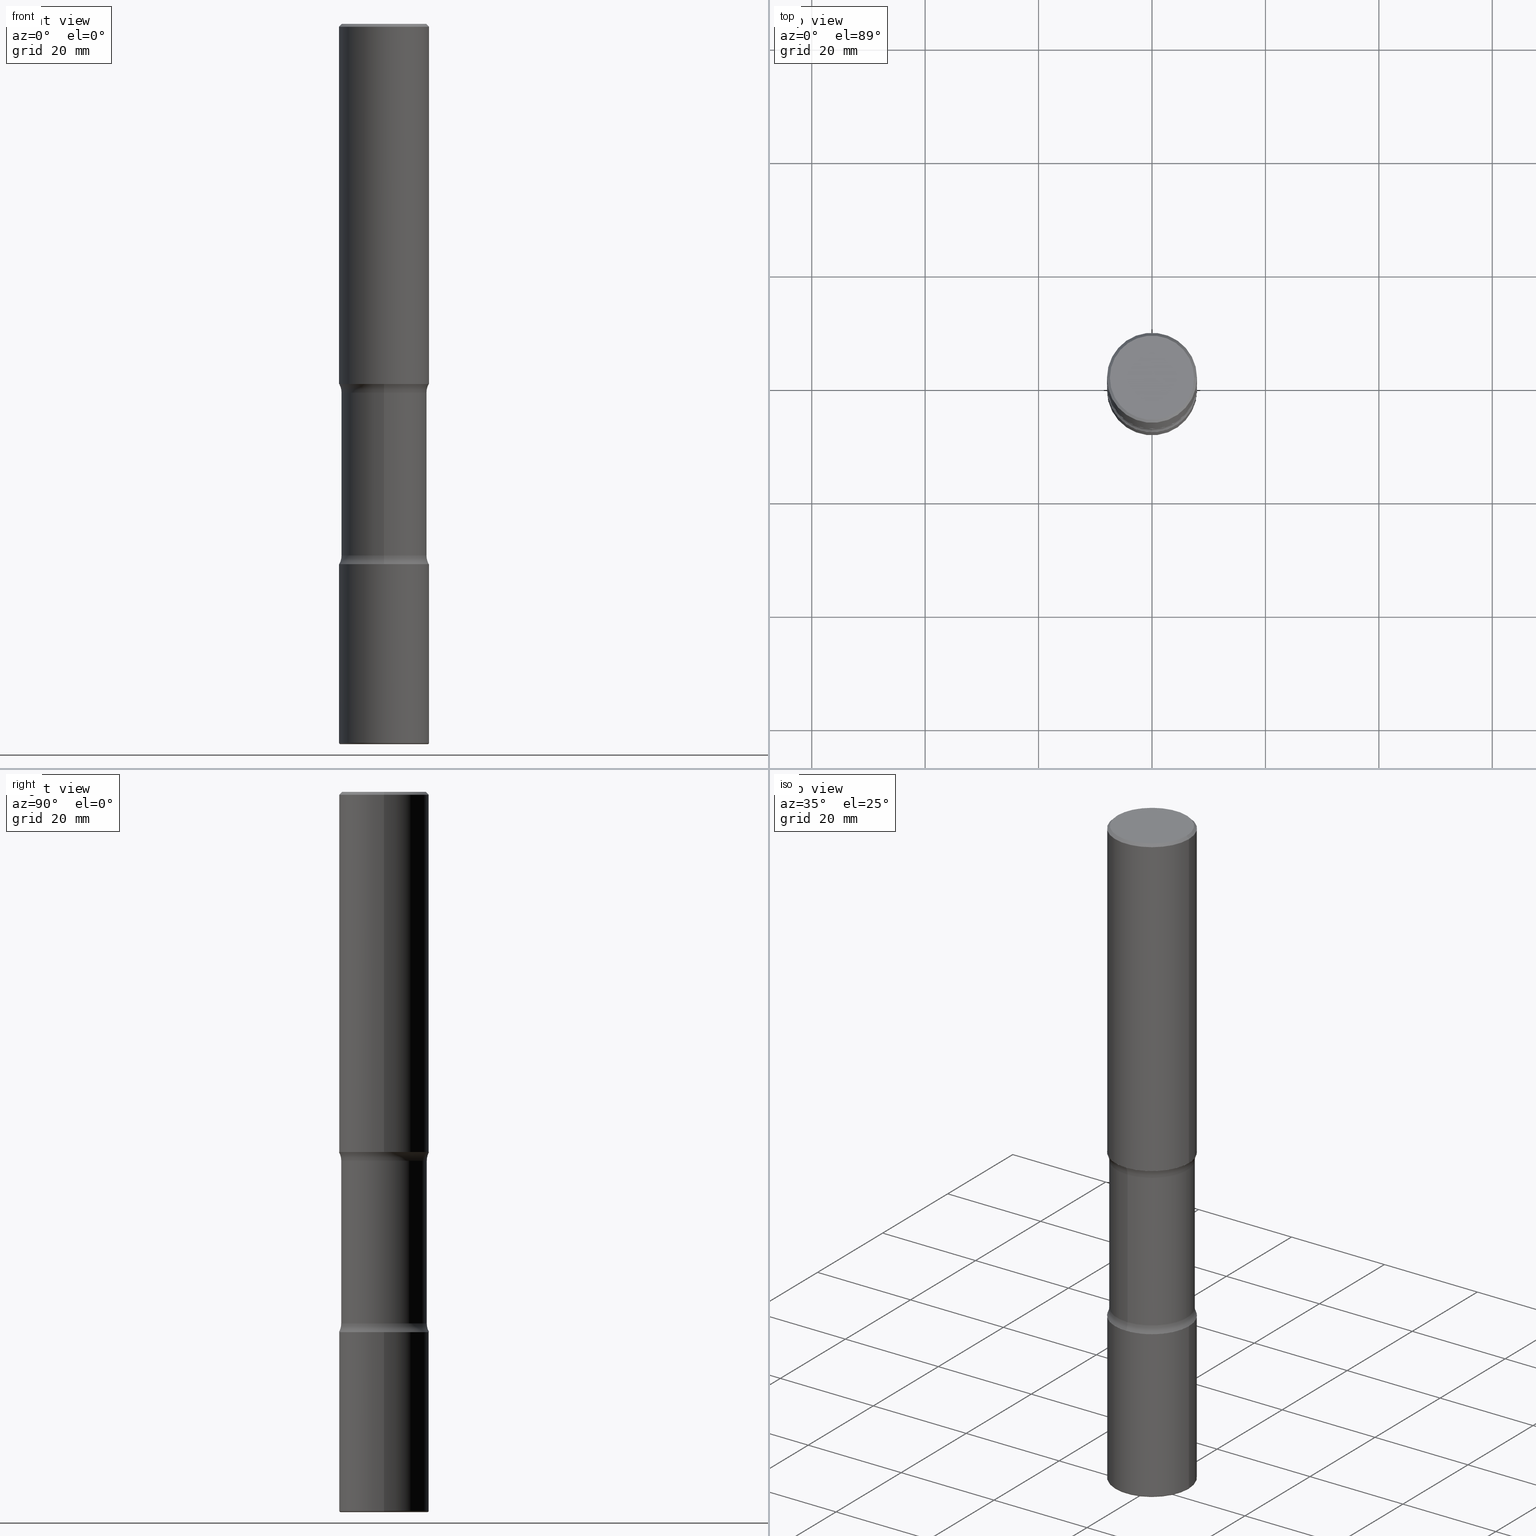
[diagram: canonical four-view strip — front | top / right | iso, engineering-drawing reading convention]
A machine part, canonical four-view strip (front | top / right | iso — engineering-drawing reading convention). The complete STEP part file that produces these views, byte-faithful:
ISO-10303-21;
HEADER;
FILE_DESCRIPTION (( 'STEP AP203' ),
    '1' );
FILE_NAME ('37996.STEP',
    '2024-03-02T02:13:46',
    ( '' ),
    ( '' ),
    'SwSTEP 2.0',
    'SolidWorks 2023',
    '' );
FILE_SCHEMA (( 'CONFIG_CONTROL_DESIGN' ));
ENDSEC;

DATA;
#1 = DIRECTION ( 'NONE',  ( 6.982962677686265922E-15, 1.000000000000000000, -3.181520472620407774E-15 ) ) ;
#2 = ORIENTED_EDGE ( 'NONE', *, *, #529, .F. ) ;
#3 = DIRECTION ( 'NONE',  ( -1.000000000000000000, 6.982962677686265922E-15, -4.876176775795935793E-29 ) ) ;
#4 = ORIENTED_EDGE ( 'NONE', *, *, #486, .T. ) ;
#5 = DIRECTION ( 'NONE',  ( -2.661913322222805309E-29, 3.181520472620407379E-15, 1.000000000000000000 ) ) ;
#6 = APPROVAL ( #298, 'UNSPECIFIED' ) ;
#7 = DIRECTION ( 'NONE',  ( -2.445468806185136597E-29, 3.491481338843145583E-15, 1.000000000000000000 ) ) ;
#8 = AXIS2_PLACEMENT_3D ( 'NONE', #119, #545, #290 ) ;
#9 = AXIS2_PLACEMENT_3D ( 'NONE', #146, #496, #93 ) ;
#10 = CALENDAR_DATE ( 2024, 1, 3 ) ;
#11 = FACE_OUTER_BOUND ( 'NONE', #196, .T. ) ;
#12 = CARTESIAN_POINT ( 'NONE',  ( -2.143905624303547210E-15, -0.3125000000000094369, -2.499999999999999112 ) ) ;
#13 = DIRECTION ( 'NONE',  ( -2.445468806185136597E-29, 3.491481338843145583E-15, 1.000000000000000000 ) ) ;
#14 = DATE_AND_TIME ( #537, #108 ) ;
#15 = FACE_OUTER_BOUND ( 'NONE', #247, .T. ) ;
#16 = CARTESIAN_POINT ( 'NONE',  ( -0.3125000000000000000, 2.220446049250313081E-15, -1.537167215704658232E-29 ) ) ;
#17 = ORIENTED_EDGE ( 'NONE', *, *, #73, .F. ) ;
#18 = PERSON_AND_ORGANIZATION ( #270, #492 ) ;
#19 = TOROIDAL_SURFACE ( 'NONE', #88, 0.3025000000000000466, 0.009999999999999995004 ) ;
#20 = CC_DESIGN_APPROVAL ( #6, ( #500 ) ) ;
#21 = DIRECTION ( 'NONE',  ( 2.438088387897960049E-29, -3.491481338843145188E-15, -1.000000000000000000 ) ) ;
#22 = ORIENTED_EDGE ( 'NONE', *, *, #37, .T. ) ;
#23 = AXIS2_PLACEMENT_3D ( 'NONE', #251, #100, #544 ) ;
#24 = CARTESIAN_POINT ( 'NONE',  ( 1.220288934286383144E-28, -1.742249188082729666E-14, -4.990000000000000213 ) ) ;
#25 = VECTOR ( 'NONE', #550, 39.37007874015748143 ) ;
#26 = LOCAL_TIME ( 21, 13, 46.00000000000000000, #316 ) ;
#27 = ADVANCED_FACE ( 'NONE', ( #117 ), #420, .T. ) ;
#28 = CARTESIAN_POINT ( 'NONE',  ( 5.843116370415757002E-29, -9.116154429886286908E-15, -2.500000000000000000 ) ) ;
#29 = ORIENTED_EDGE ( 'NONE', *, *, #433, .T. ) ;
#30 = CC_DESIGN_PERSON_AND_ORGANIZATION_ASSIGNMENT ( #147, #59, ( #225 ) ) ;
#31 = ORIENTED_EDGE ( 'NONE', *, *, #37, .F. ) ;
#32 = ORIENTED_EDGE ( 'NONE', *, *, #407, .F. ) ;
#33 = CARTESIAN_POINT ( 'NONE',  ( 2.073067044938172750E-15, 0.2968749999999910627, -2.560515364784492043 ) ) ;
#34 = EDGE_CURVE ( 'NONE', #430, #425, #387, .T. ) ;
#35 = DIRECTION ( 'NONE',  ( 6.982962677686265922E-15, 1.000000000000000000, -3.680805717779212911E-15 ) ) ;
#36 = ORIENTED_EDGE ( 'NONE', *, *, #518, .T. ) ;
#37 = EDGE_CURVE ( 'NONE', #506, #430, #533, .T. ) ;
#38 = CIRCLE ( 'NONE', #421, 0.1250000000000000000 ) ;
#39 = DIRECTION ( 'NONE',  ( -6.982962677686266711E-15, -1.000000000000000000, 0.000000000000000000 ) ) ;
#40 = ORIENTED_EDGE ( 'NONE', *, *, #317, .T. ) ;
#41 = DIRECTION ( 'NONE',  ( -2.445468806185136597E-29, 3.491481338843145583E-15, 1.000000000000000000 ) ) ;
#42 = DIRECTION ( 'NONE',  ( -2.445468806185136597E-29, 3.491481338843145583E-15, 1.000000000000000000 ) ) ;
#43 = CARTESIAN_POINT ( 'NONE',  ( 0.000000000000000000, 0.000000000000000000, 0.000000000000000000 ) ) ;
#44 = EDGE_LOOP ( 'NONE', ( #169, #507, #301, #113 ) ) ;
#45 = EDGE_CURVE ( 'NONE', #392, #204, #419, .T. ) ;
#46 = DIRECTION ( 'NONE',  ( 1.000000000000000000, -6.982962677686266711E-15, 4.876176775795936353E-29 ) ) ;
#47 = CIRCLE ( 'NONE', #364, 0.2968750000000003886 ) ;
#48 = VECTOR ( 'NONE', #226, 39.37007874015748143 ) ;
#49 = ORIENTED_EDGE ( 'NONE', *, *, #542, .F. ) ;
#50 = LOCAL_TIME ( 21, 13, 46.00000000000000000, #356 ) ;
#51 = CARTESIAN_POINT ( 'NONE',  ( 9.022519586318875859E-29, -1.288176675380346137E-14, -3.689484635215509289 ) ) ;
#52 = ORIENTED_EDGE ( 'NONE', *, *, #413, .F. ) ;
#53 = EDGE_CURVE ( 'NONE', #384, #477, #259, .T. ) ;
#54 = CARTESIAN_POINT ( 'NONE',  ( 4.890937612370273159E-31, -6.982962677686291609E-17, -0.02000000000000000042 ) ) ;
#55 = EDGE_CURVE ( 'NONE', #483, #244, #248, .T. ) ;
#56 = CARTESIAN_POINT ( 'NONE',  ( 0.3125000000000000555, -1.527523085743875734E-14, -3.750000000000000000 ) ) ;
#57 = CLOSED_SHELL ( 'NONE', ( #457, #329, #263, #125, #221, #449 ) ) ;
#58 = CARTESIAN_POINT ( 'NONE',  ( -0.3025000000000000466, -1.525503037505920444E-14, -5.000000000000000000 ) ) ;
#59 = PERSON_AND_ORGANIZATION_ROLE ( 'classification_officer' ) ;
#60 = DIRECTION ( 'NONE',  ( 2.661913322222804749E-29, -3.181520472620407774E-15, -1.000000000000000000 ) ) ;
#61 = LINE ( 'NONE', #16, #25 ) ;
#62 = MANIFOLD_SOLID_BREP ( 'Body-Move/Copy2[2]', #451 ) ;
#63 = AXIS2_PLACEMENT_3D ( 'NONE', #228, #410, #82 ) ;
#64 = DIRECTION ( 'NONE',  ( -2.445468806185136597E-29, 3.491481338843145583E-15, 1.000000000000000000 ) ) ;
#65 = CARTESIAN_POINT ( 'NONE',  ( -0.3124999999999999445, -1.520204583157698358E-14, -4.990000000000000213 ) ) ;
#66 = PRODUCT_RELATED_PRODUCT_CATEGORY ( 'detail', '', ( #536 ) ) ;
#67 = ORIENTED_EDGE ( 'NONE', *, *, #106, .F. ) ;
#68 = ORIENTED_EDGE ( 'NONE', *, *, #91, .T. ) ;
#69 = DIRECTION ( 'NONE',  ( -1.000000000000000000, 6.982962677686266711E-15, 0.000000000000000000 ) ) ;
#70 = AXIS2_PLACEMENT_3D ( 'NONE', #311, #222, #94 ) ;
#71 = FACE_OUTER_BOUND ( 'NONE', #371, .T. ) ;
#72 = DIRECTION ( 'NONE',  ( 1.000000000000000000, -6.982962677686268288E-15, 0.000000000000000000 ) ) ;
#73 = EDGE_CURVE ( 'NONE', #425, #430, #142, .T. ) ;
#74 = FACE_OUTER_BOUND ( 'NONE', #517, .T. ) ;
#75 = ORIENTED_EDGE ( 'NONE', *, *, #34, .T. ) ;
#76 = DIMENSIONAL_EXPONENTS ( 1.000000000000000000, 0.000000000000000000, 0.000000000000000000, 0.000000000000000000, 0.000000000000000000, 0.000000000000000000, 0.000000000000000000 ) ;
#77 = ORIENTED_EDGE ( 'NONE', *, *, #372, .F. ) ;
#78 = EDGE_LOOP ( 'NONE', ( #558, #206 ) ) ;
#79 = AXIS2_PLACEMENT_3D ( 'NONE', #51, #481, #209 ) ;
#80 = APPLICATION_CONTEXT ( 'configuration controlled 3d designs of mechanical parts and assemblies' ) ;
#81 = AXIS2_PLACEMENT_3D ( 'NONE', #546, #367, #332 ) ;
#82 = DIRECTION ( 'NONE',  ( 1.000000000000000000, -6.982962677686268288E-15, 0.000000000000000000 ) ) ;
#83 = ORIENTED_EDGE ( 'NONE', *, *, #287, .F. ) ;
#84 = DIRECTION ( 'NONE',  ( -6.982962677686265922E-15, -1.000000000000000000, 3.181520472620407379E-15 ) ) ;
#85 = EDGE_LOOP ( 'NONE', ( #131, #553 ) ) ;
#86 = EDGE_LOOP ( 'NONE', ( #77, #4, #337, #334 ) ) ;
#87 = DIRECTION ( 'NONE',  ( -2.445468806185136597E-29, 3.491481338843145583E-15, 1.000000000000000000 ) ) ;
#88 = AXIS2_PLACEMENT_3D ( 'NONE', #210, #7, #200 ) ;
#89 = VERTEX_POINT ( 'NONE', #543 ) ;
#90 = DIRECTION ( 'NONE',  ( -2.445468806185136877E-29, 3.491481338843145188E-15, 1.000000000000000000 ) ) ;
#91 = EDGE_CURVE ( 'NONE', #89, #506, #47, .T. ) ;
#92 = DIRECTION ( 'NONE',  ( -1.000000000000000000, 6.982962677686266711E-15, 0.000000000000000000 ) ) ;
#93 = DIRECTION ( 'NONE',  ( 6.860497997771529985E-15, 1.000000000000000000, 0.000000000000000000 ) ) ;
#94 = DIRECTION ( 'NONE',  ( 1.000000000000000000, -6.982962677686265133E-15, 0.000000000000000000 ) ) ;
#95 = AXIS2_PLACEMENT_3D ( 'NONE', #28, #463, #336 ) ;
#96 = CARTESIAN_POINT ( 'NONE',  ( 1.249789967597276859E-28, -1.706995561143730792E-14, -5.000000000000000000 ) ) ;
#97 = PRODUCT_DEFINITION_FORMATION_WITH_SPECIFIED_SOURCE ( 'ANY', '', #536, .NOT_KNOWN. ) ;
#98 = COORDINATED_UNIVERSAL_TIME_OFFSET ( 5, 0, .BEHIND. ) ;
#99 = DIRECTION ( 'NONE',  ( 2.438088387897960049E-29, -3.491481338843145188E-15, -1.000000000000000000 ) ) ;
#100 = DIRECTION ( 'NONE',  ( -2.445468806185136597E-29, 3.491481338843145583E-15, 1.000000000000000000 ) ) ;
#101 = APPROVAL_STATUS ( 'not_yet_approved' ) ;
#102 = FACE_OUTER_BOUND ( 'NONE', #181, .T. ) ;
#103 = PERSON_AND_ORGANIZATION ( #270, #492 ) ;
#104 = AXIS2_PLACEMENT_3D ( 'NONE', #285, #280, #72 ) ;
#105 = CIRCLE ( 'NONE', #409, 0.3025000000000000466 ) ;
#106 = EDGE_CURVE ( 'NONE', #506, #483, #511, .T. ) ;
#107 = CARTESIAN_POINT ( 'NONE',  ( -0.3124999999999998890, -2.178820437692049462E-15, -2.500000000000000000 ) ) ;
#108 = LOCAL_TIME ( 21, 13, 46.00000000000000000, #440 ) ;
#109 = ADVANCED_FACE ( 'NONE', ( #74 ), #458, .F. ) ;
#110 = DIRECTION ( 'NONE',  ( 2.445468806185136597E-29, -3.491481338843145583E-15, -1.000000000000000000 ) ) ;
#111 = CARTESIAN_POINT ( 'NONE',  ( 2.945937379648984488E-15, 0.4218749999999872324, -3.689484635215510622 ) ) ;
#112 = DIRECTION ( 'NONE',  ( 6.982962677686265922E-15, 1.000000000000000000, -3.181520472620407774E-15 ) ) ;
#113 = ORIENTED_EDGE ( 'NONE', *, *, #309, .T. ) ;
#114 = CARTESIAN_POINT ( 'NONE',  ( 4.890937612370273159E-31, -6.982962677686291609E-17, -0.02000000000000000042 ) ) ;
#115 = AXIS2_PLACEMENT_3D ( 'NONE', #269, #64, #405 ) ;
#116 = ORIENTED_EDGE ( 'NONE', *, *, #407, .T. ) ;
#117 = FACE_OUTER_BOUND ( 'NONE', #379, .T. ) ;
#118 = ORIENTED_EDGE ( 'NONE', *, *, #551, .T. ) ;
#119 = CARTESIAN_POINT ( 'NONE',  ( 5.843116370415757002E-29, -9.116154429886286908E-15, -2.500000000000000000 ) ) ;
#120 = EDGE_CURVE ( 'NONE', #204, #392, #121, .T. ) ;
#121 = CIRCLE ( 'NONE', #104, 0.3125000000000000555 ) ;
#122 = CARTESIAN_POINT ( 'NONE',  ( 9.170508023194262238E-29, -1.309305502066179741E-14, -3.750000000000000000 ) ) ;
#123 = APPROVAL_PERSON_ORGANIZATION ( #18, #560, #262 ) ;
#124 = EDGE_LOOP ( 'NONE', ( #297, #68, #306, #330 ) ) ;
#125 = ADVANCED_FACE ( 'NONE', ( #375 ), #19, .T. ) ;
#126 = APPLICATION_PROTOCOL_DEFINITION ( 'international standard', 'config_control_design', 1994, #80 ) ;
#127 = DIRECTION ( 'NONE',  ( -2.445468806185136597E-29, 3.491481338843145583E-15, 1.000000000000000000 ) ) ;
#128 = ORIENTED_EDGE ( 'NONE', *, *, #275, .T. ) ;
#129 = APPLICATION_PROTOCOL_DEFINITION ( 'international standard', 'config_control_design', 1994, #521 ) ;
#130 = DIRECTION ( 'NONE',  ( -2.445468806185136877E-29, 3.491481338843145188E-15, 1.000000000000000000 ) ) ;
#131 = ORIENTED_EDGE ( 'NONE', *, *, #133, .T. ) ;
#132 = CARTESIAN_POINT ( 'NONE',  ( 4.890937612370273159E-31, -6.982962677686291609E-17, -0.02000000000000000042 ) ) ;
#133 = EDGE_CURVE ( 'NONE', #461, #211, #403, .T. ) ;
#134 = CIRCLE ( 'NONE', #313, 0.3124999999999996669 ) ;
#135 = ORIENTED_EDGE ( 'NONE', *, *, #348, .F. ) ;
#136 = APPROVAL_PERSON_ORGANIZATION ( #346, #6, #480 ) ;
#137 = DIRECTION ( 'NONE',  ( 1.000000000000000000, -6.982962677686267499E-15, 0.000000000000000000 ) ) ;
#138 = DIRECTION ( 'NONE',  ( 1.000000000000000000, -6.982962677686266711E-15, 4.876067333457695642E-29 ) ) ;
#139 = LINE ( 'NONE', #532, #205 ) ;
#140 = SHAPE_DEFINITION_REPRESENTATION ( #268, #277 ) ;
#141 = EDGE_CURVE ( 'NONE', #504, #483, #363, .T. ) ;
#142 = CIRCLE ( 'NONE', #95, 0.3125000000000004441 ) ;
#143 = CARTESIAN_POINT ( 'NONE',  ( 2.042516583223230173E-15, 0.2924999999999996492, -1.006318497896267537E-15 ) ) ;
#144 = AXIS2_PLACEMENT_3D ( 'NONE', #555, #347, #522 ) ;
#145 = ORIENTED_EDGE ( 'NONE', *, *, #216, .T. ) ;
#146 = CARTESIAN_POINT ( 'NONE',  ( -2.894272592809806502E-15, -0.4218750000000096034, -2.560515364784489822 ) ) ;
#147 = PERSON_AND_ORGANIZATION ( #270, #492 ) ;
#148 = ORIENTED_EDGE ( 'NONE', *, *, #45, .F. ) ;
#149 = EDGE_CURVE ( 'NONE', #474, #159, #223, .T. ) ;
#150 = AXIS2_PLACEMENT_3D ( 'NONE', #111, #276, #459 ) ;
#151 = VECTOR ( 'NONE', #549, 39.37007874015748143 ) ;
#152 = DIRECTION ( 'NONE',  ( 1.000000000000000000, -6.982962677686266711E-15, 4.876176775795936353E-29 ) ) ;
#153 = ADVANCED_FACE ( 'NONE', ( #71 ), #202, .F. ) ;
#154 = DIRECTION ( 'NONE',  ( -2.445468806185136597E-29, 3.491481338843145583E-15, 1.000000000000000000 ) ) ;
#155 = DIRECTION ( 'NONE',  ( 2.661913322222804749E-29, -3.181520472620407774E-15, -1.000000000000000000 ) ) ;
#156 = ORIENTED_EDGE ( 'NONE', *, *, #529, .T. ) ;
#157 = DIRECTION ( 'NONE',  ( 2.661913322222805309E-29, -3.181520472620407379E-15, -1.000000000000000000 ) ) ;
#158 = CARTESIAN_POINT ( 'NONE',  ( 6.004203026134765083E-29, -9.308685301856234143E-15, -2.560515364784490711 ) ) ;
#159 = VERTEX_POINT ( 'NONE', #462 ) ;
#160 = LINE ( 'NONE', #192, #293 ) ;
#161 = AXIS2_PLACEMENT_3D ( 'NONE', #198, #41, #456 ) ;
#162 = EDGE_LOOP ( 'NONE', ( #135, #552, #197, #237 ) ) ;
#163 = ADVANCED_FACE ( 'NONE', ( #308 ), #323, .F. ) ;
#164 = VERTEX_POINT ( 'NONE', #427 ) ;
#165 = TOROIDAL_SURFACE ( 'NONE', #79, 0.4218750000000001110, 0.1250000000000000000 ) ;
#166 = CIRCLE ( 'NONE', #388, 0.3124999999999996669 ) ;
#167 = DIRECTION ( 'NONE',  ( 2.661913322222804749E-29, -3.181520472620407774E-15, -1.000000000000000000 ) ) ;
#168 = LOCAL_TIME ( 21, 13, 46.00000000000000000, #494 ) ;
#169 = ORIENTED_EDGE ( 'NONE', *, *, #486, .F. ) ;
#170 = FACE_OUTER_BOUND ( 'NONE', #464, .T. ) ;
#171 = ORIENTED_EDGE ( 'NONE', *, *, #559, .T. ) ;
#172 = FACE_OUTER_BOUND ( 'NONE', #86, .T. ) ;
#173 = ORIENTED_EDGE ( 'NONE', *, *, #275, .F. ) ;
#174 = CARTESIAN_POINT ( 'NONE',  ( -2.090307983695923198E-15, -0.2968750000000130451, -3.689484635215508401 ) ) ;
#175 = AXIS2_PLACEMENT_3D ( 'NONE', #359, #21, #361 ) ;
#176 = DIRECTION ( 'NONE',  ( 1.000000000000000000, -6.982962677686273021E-15, 0.000000000000000000 ) ) ;
#177 = PERSON_AND_ORGANIZATION ( #270, #492 ) ;
#178 = CARTESIAN_POINT ( 'NONE',  ( -0.3125000000000000555, -1.303732740149423396E-14, -3.750000000000000000 ) ) ;
#179 = ADVANCED_FACE ( 'NONE', ( #296 ), #165, .F. ) ;
#180 = DATE_AND_TIME ( #265, #26 ) ;
#181 = EDGE_LOOP ( 'NONE', ( #156, #116, #390, #376 ) ) ;
#182 = TOROIDAL_SURFACE ( 'NONE', #460, 0.3025000000000000466, 0.009999999999999995004 ) ;
#183 = EDGE_LOOP ( 'NONE', ( #454, #319, #339, #229 ) ) ;
#184 = APPROVAL_DATE_TIME ( #354, #560 ) ;
#185 = ADVANCED_FACE ( 'NONE', ( #11 ), #394, .F. ) ;
#186 = PERSON_AND_ORGANIZATION_ROLE ( 'creator' ) ;
#187 = ADVANCED_FACE ( 'NONE', ( #170 ), #484, .T. ) ;
#188 = APPROVAL ( #101, 'UNSPECIFIED' ) ;
#189 = CARTESIAN_POINT ( 'NONE',  ( 1.222734403092568523E-28, -1.745740669421572989E-14, -5.000000000000000000 ) ) ;
#190 = CARTESIAN_POINT ( 'NONE',  ( 9.022519586318875859E-29, -1.288176675380346137E-14, -3.689484635215509289 ) ) ;
#191 = AXIS2_PLACEMENT_3D ( 'NONE', #344, #438, #92 ) ;
#192 = CARTESIAN_POINT ( 'NONE',  ( 0.3124999999999996669, -2.213735251080464545E-15, -0.02000000000000000042 ) ) ;
#193 = CARTESIAN_POINT ( 'NONE',  ( 1.220288934286383144E-28, -1.742249188082729666E-14, -4.990000000000000213 ) ) ;
#194 = ORIENTED_EDGE ( 'NONE', *, *, #348, .T. ) ;
#195 = DIRECTION ( 'NONE',  ( 1.000000000000000000, -6.982962677686273021E-15, 0.000000000000000000 ) ) ;
#196 = EDGE_LOOP ( 'NONE', ( #295, #36 ) ) ;
#197 = ORIENTED_EDGE ( 'NONE', *, *, #141, .T. ) ;
#198 = CARTESIAN_POINT ( 'NONE',  ( 6.113672015462842613E-29, -8.728703347107864943E-15, -2.500000000000000000 ) ) ;
#199 = AXIS2_PLACEMENT_3D ( 'NONE', #24, #236, #465 ) ;
#200 = DIRECTION ( 'NONE',  ( 1.000000000000000000, -6.982962677686262766E-15, 4.883557194083111780E-29 ) ) ;
#201 = ADVANCED_FACE ( 'NONE', ( #172 ), #548, .T. ) ;
#202 = PLANE ( 'NONE',  #374 ) ;
#203 = DIRECTION ( 'NONE',  ( 1.000000000000000000, -6.982962677686266711E-15, 4.876176775795936353E-29 ) ) ;
#204 = VERTEX_POINT ( 'NONE', #56 ) ;
#205 = VECTOR ( 'NONE', #315, 39.37007874015748854 ) ;
#206 = ORIENTED_EDGE ( 'NONE', *, *, #149, .F. ) ;
#207 = ADVANCED_FACE ( 'NONE', ( #389 ), #516, .F. ) ;
#208 = MECHANICAL_CONTEXT ( 'NONE', #80, 'mechanical' ) ;
#209 = DIRECTION ( 'NONE',  ( 6.982962677686265922E-15, 1.000000000000000000, -3.181520472620407774E-15 ) ) ;
#210 = CARTESIAN_POINT ( 'NONE',  ( 1.220288934286383144E-28, -1.742249188082729666E-14, -4.990000000000000213 ) ) ;
#211 = VERTEX_POINT ( 'NONE', #338 ) ;
#212 = DIRECTION ( 'NONE',  ( -2.445468806185136597E-29, 3.491481338843145583E-15, 1.000000000000000000 ) ) ;
#213 = AXIS2_PLACEMENT_3D ( 'NONE', #122, #5, #84 ) ;
#214 = DIRECTION ( 'NONE',  ( 2.661913322222804749E-29, -3.181520472620407774E-15, -1.000000000000000000 ) ) ;
#215 = APPROVAL_DATE_TIME ( #180, #6 ) ;
#216 = EDGE_CURVE ( 'NONE', #382, #204, #341, .T. ) ;
#217 = FACE_OUTER_BOUND ( 'NONE', #85, .T. ) ;
#218 = CALENDAR_DATE ( 2024, 1, 3 ) ;
#219 = DIRECTION ( 'NONE',  ( 6.982962677686265922E-15, 1.000000000000000000, -3.181520472620407774E-15 ) ) ;
#220 = MANIFOLD_SOLID_BREP ( 'Body-Move/Copy2[4]', #431 ) ;
#221 = ADVANCED_FACE ( 'NONE', ( #475 ), #519, .T. ) ;
#222 = DIRECTION ( 'NONE',  ( -2.445468806185136597E-29, 3.491481338843145583E-15, 1.000000000000000000 ) ) ;
#223 = CIRCLE ( 'NONE', #547, 0.3124999999999998890 ) ;
#224 = CIRCLE ( 'NONE', #470, 0.3125000000000000555 ) ;
#225 = SECURITY_CLASSIFICATION ( '', '', #258 ) ;
#226 = DIRECTION ( 'NONE',  ( -2.445468806185136877E-29, 3.491481338843145188E-15, 1.000000000000000000 ) ) ;
#227 = CARTESIAN_POINT ( 'NONE',  ( 0.3025000000000000466, -1.956975290421582651E-14, -5.000000000000000000 ) ) ;
#228 = CARTESIAN_POINT ( 'NONE',  ( 9.170508023194262238E-29, -1.309305502066179741E-14, -3.750000000000000000 ) ) ;
#229 = ORIENTED_EDGE ( 'NONE', *, *, #309, .F. ) ;
#230 = AXIS2_PLACEMENT_3D ( 'NONE', #257, #127, #46 ) ;
#231 = CC_DESIGN_APPROVAL ( #188, ( #225 ) ) ;
#232 = FACE_OUTER_BOUND ( 'NONE', #44, .T. ) ;
#233 = DIRECTION ( 'NONE',  ( -2.445468806185136597E-29, 3.491481338843145583E-15, 1.000000000000000000 ) ) ;
#234 = ORIENTED_EDGE ( 'NONE', *, *, #510, .T. ) ;
#235 = CARTESIAN_POINT ( 'NONE',  ( 2.073067044938201149E-15, 0.2968749999999872324, -3.689484635215510622 ) ) ;
#236 = DIRECTION ( 'NONE',  ( -2.445468806185136597E-29, 3.491481338843145583E-15, 1.000000000000000000 ) ) ;
#237 = ORIENTED_EDGE ( 'NONE', *, *, #55, .T. ) ;
#238 = ADVANCED_FACE ( 'NONE', ( #253 ), #243, .T. ) ;
#239 = CARTESIAN_POINT ( 'NONE',  ( 6.113672015462842613E-29, -8.728703347107864943E-15, -2.500000000000000000 ) ) ;
#240 = CARTESIAN_POINT ( 'NONE',  ( -0.3025000000000000466, -1.527310010515299208E-14, -4.990000000000000213 ) ) ;
#241 = ORIENTED_EDGE ( 'NONE', *, *, #53, .F. ) ;
#242 = EDGE_CURVE ( 'NONE', #159, #415, #473, .T. ) ;
#243 = CYLINDRICAL_SURFACE ( 'NONE', #404, 0.3124999999999997224 ) ;
#244 = VERTEX_POINT ( 'NONE', #174 ) ;
#245 = PERSON_AND_ORGANIZATION ( #270, #492 ) ;
#246 = CARTESIAN_POINT ( 'NONE',  ( 1.249789967597276859E-28, -1.706995561143730792E-14, -5.000000000000000000 ) ) ;
#247 = EDGE_LOOP ( 'NONE', ( #369, #252, #2, #173 ) ) ;
#248 = CIRCLE ( 'NONE', #279, 0.2968750000000001110 ) ;
#249 = TOROIDAL_SURFACE ( 'NONE', #282, 0.4218750000000003331, 0.1249999999999999306 ) ;
#250 = PLANE ( 'NONE',  #557 ) ;
#251 = CARTESIAN_POINT ( 'NONE',  ( -7.306959900346538153E-46, 1.043240219266313067E-31, 2.987958743070287587E-17 ) ) ;
#252 = ORIENTED_EDGE ( 'NONE', *, *, #53, .T. ) ;
#253 = FACE_OUTER_BOUND ( 'NONE', #183, .T. ) ;
#254 = CARTESIAN_POINT ( 'NONE',  ( -2.143905624303511711E-15, -0.3125000000000131006, -3.749999999999999112 ) ) ;
#255 =( NAMED_UNIT ( * ) SI_UNIT ( $, .STERADIAN. ) SOLID_ANGLE_UNIT ( ) );
#256 = CC_DESIGN_PERSON_AND_ORGANIZATION_ASSIGNMENT ( #398, #186, ( #500 ) ) ;
#257 = CARTESIAN_POINT ( 'NONE',  ( 0.000000000000000000, 0.000000000000000000, 0.000000000000000000 ) ) ;
#258 = SECURITY_CLASSIFICATION_LEVEL ( 'unclassified' ) ;
#259 = CIRCLE ( 'NONE', #478, 0.009999999999999962044 ) ;
#260 = CIRCLE ( 'NONE', #144, 0.009999999999999962044 ) ;
#261 = DIRECTION ( 'NONE',  ( -2.445468806185136597E-29, 3.491481338843145583E-15, 1.000000000000000000 ) ) ;
#262 = APPROVAL_ROLE ( '' ) ;
#263 = ADVANCED_FACE ( 'NONE', ( #299 ), #250, .T. ) ;
#264 = DIRECTION ( 'NONE',  ( -1.000000000000000000, 6.982962677686265922E-15, -4.876176775795935793E-29 ) ) ;
#265 = CALENDAR_DATE ( 2024, 1, 3 ) ;
#266 = LINE ( 'NONE', #357, #48 ) ;
#267 = PERSON_AND_ORGANIZATION ( #270, #492 ) ;
#268 = PRODUCT_DEFINITION_SHAPE ( 'NONE', 'NONE',  #500 ) ;
#269 = CARTESIAN_POINT ( 'NONE',  ( 0.000000000000000000, 0.000000000000000000, 0.000000000000000000 ) ) ;
#270 = PERSON ( 'UNSPECIFIED', 'UNSPECIFIED', 'UNSPECIFIED', ('UNSPECIFIED'), ('UNSPECIFIED'), ('UNSPECIFIED') ) ;
#271 = CIRCLE ( 'NONE', #81, 0.2968750000000003886 ) ;
#272 = APPROVAL_PERSON_ORGANIZATION ( #267, #188, #395 ) ;
#273 = DIRECTION ( 'NONE',  ( 2.661913322222804749E-29, -3.181520472620407774E-15, -1.000000000000000000 ) ) ;
#274 = CARTESIAN_POINT ( 'NONE',  ( 2.182175836777049855E-15, 0.3124999999999868994, -3.750000000000001332 ) ) ;
#275 = EDGE_CURVE ( 'NONE', #520, #382, #260, .T. ) ;
#276 = DIRECTION ( 'NONE',  ( -1.000000000000000000, 6.982962677686265922E-15, -4.883557194083112340E-29 ) ) ;
#277 = ADVANCED_BREP_SHAPE_REPRESENTATION ( '37996', ( #436, #62, #220, #444 ), #540 ) ;
#278 = DIRECTION ( 'NONE',  ( 2.661913322222804749E-29, -3.181520472620407774E-15, -1.000000000000000000 ) ) ;
#279 = AXIS2_PLACEMENT_3D ( 'NONE', #423, #278, #467 ) ;
#280 = DIRECTION ( 'NONE',  ( -2.445468806185136597E-29, 3.491481338843145583E-15, 1.000000000000000000 ) ) ;
#281 = ORIENTED_EDGE ( 'NONE', *, *, #73, .T. ) ;
#282 = AXIS2_PLACEMENT_3D ( 'NONE', #498, #60, #219 ) ;
#283 =( CONVERSION_BASED_UNIT ( 'INCH', #501 ) LENGTH_UNIT ( ) NAMED_UNIT ( #76 ) );
#284 = DIRECTION ( 'NONE',  ( 6.982962677686265922E-15, 1.000000000000000000, -3.181520472620407379E-15 ) ) ;
#285 = CARTESIAN_POINT ( 'NONE',  ( 9.170508023194262238E-29, -1.309305502066179741E-14, -3.750000000000000000 ) ) ;
#286 = EDGE_LOOP ( 'NONE', ( #32, #40, #145, #148 ) ) ;
#287 = EDGE_CURVE ( 'NONE', #415, #164, #134, .T. ) ;
#288 = DIRECTION ( 'NONE',  ( 7.105427357601001859E-15, 1.000000000000000000, -3.491481338843145583E-15 ) ) ;
#289 =( NAMED_UNIT ( * ) PLANE_ANGLE_UNIT ( ) SI_UNIT ( $, .RADIAN. ) );
#290 = DIRECTION ( 'NONE',  ( 6.982962677686265922E-15, 1.000000000000000000, -3.496765431890251792E-15 ) ) ;
#291 = EDGE_LOOP ( 'NONE', ( #52, #411 ) ) ;
#292 = AXIS2_PLACEMENT_3D ( 'NONE', #381, #325, #39 ) ;
#293 = VECTOR ( 'NONE', #328, 39.37007874015748854 ) ;
#294 = CARTESIAN_POINT ( 'NONE',  ( 0.3125000000000000000, -2.182175836776958347E-15, 1.523805242436230075E-29 ) ) ;
#295 = ORIENTED_EDGE ( 'NONE', *, *, #476, .T. ) ;
#296 = FACE_OUTER_BOUND ( 'NONE', #162, .T. ) ;
#297 = ORIENTED_EDGE ( 'NONE', *, *, #559, .F. ) ;
#298 = APPROVAL_STATUS ( 'not_yet_approved' ) ;
#299 = FACE_OUTER_BOUND ( 'NONE', #291, .T. ) ;
#300 = CC_DESIGN_DATE_AND_TIME_ASSIGNMENT ( #530, #321, ( #225 ) ) ;
#301 = ORIENTED_EDGE ( 'NONE', *, *, #333, .T. ) ;
#302 = DIRECTION ( 'NONE',  ( 0.000000000000000000, 0.000000000000000000, 1.000000000000000000 ) ) ;
#303 = CIRCLE ( 'NONE', #199, 0.3124999999999998890 ) ;
#304 = DIRECTION ( 'NONE',  ( -2.445468806185136597E-29, 3.491481338843145583E-15, 1.000000000000000000 ) ) ;
#305 = CYLINDRICAL_SURFACE ( 'NONE', #490, 0.2968750000000002220 ) ;
#306 = ORIENTED_EDGE ( 'NONE', *, *, #106, .T. ) ;
#307 = CC_DESIGN_PERSON_AND_ORGANIZATION_ASSIGNMENT ( #245, #343, ( #536 ) ) ;
#308 = FACE_OUTER_BOUND ( 'NONE', #524, .T. ) ;
#309 = EDGE_CURVE ( 'NONE', #164, #415, #166, .T. ) ;
#310 = DATE_TIME_ROLE ( 'creation_date' ) ;
#311 = CARTESIAN_POINT ( 'NONE',  ( 1.220288934286383144E-28, -1.742249188082729666E-14, -4.990000000000000213 ) ) ;
#312 = CARTESIAN_POINT ( 'NONE',  ( 0.3124999999999996669, -2.213735251080464545E-15, -0.02000000000000000042 ) ) ;
#313 = AXIS2_PLACEMENT_3D ( 'NONE', #132, #304, #437 ) ;
#314 = CC_DESIGN_SECURITY_CLASSIFICATION ( #225, ( #97 ) ) ;
#315 = DIRECTION ( 'NONE',  ( -0.7071067811865473507, 2.468850131082255483E-15, -0.7071067811865475727 ) ) ;
#316 = COORDINATED_UNIVERSAL_TIME_OFFSET ( 5, 0, .BEHIND. ) ;
#317 = EDGE_CURVE ( 'NONE', #477, #382, #365, .T. ) ;
#318 = DESIGN_CONTEXT ( 'detailed design', #521, 'design' ) ;
#319 = ORIENTED_EDGE ( 'NONE', *, *, #149, .T. ) ;
#320 = FACE_OUTER_BOUND ( 'NONE', #414, .T. ) ;
#321 = DATE_TIME_ROLE ( 'classification_date' ) ;
#322 = CARTESIAN_POINT ( 'NONE',  ( -0.2924999999999996492, 2.077431396611661822E-15, 2.987958743068847300E-17 ) ) ;
#323 = TOROIDAL_SURFACE ( 'NONE', #408, 0.4218750000000003331, 0.1249999999999999306 ) ;
#324 = CIRCLE ( 'NONE', #358, 0.3125000000000000555 ) ;
#325 = DIRECTION ( 'NONE',  ( -1.000000000000000000, 6.982962677686265922E-15, -4.883557194083112340E-29 ) ) ;
#326 = CARTESIAN_POINT ( 'NONE',  ( -2.036710343088299976E-15, -0.2968750000000173195, -4.999999999999999112 ) ) ;
#327 = CARTESIAN_POINT ( 'NONE',  ( 2.073067044938236647E-15, 0.2968749999999831801, -5.000000000000000888 ) ) ;
#328 = DIRECTION ( 'NONE',  ( 0.7071067811865473507, -7.319954787623254468E-15, -0.7071067811865475727 ) ) ;
#329 = ADVANCED_FACE ( 'NONE', ( #15 ), #182, .T. ) ;
#330 = ORIENTED_EDGE ( 'NONE', *, *, #453, .F. ) ;
#331 = AXIS2_PLACEMENT_3D ( 'NONE', #538, #443, #406 ) ;
#332 = DIRECTION ( 'NONE',  ( 6.982962677686265922E-15, 1.000000000000000000, -3.680805717779212911E-15 ) ) ;
#333 = EDGE_CURVE ( 'NONE', #461, #164, #139, .T. ) ;
#334 = ORIENTED_EDGE ( 'NONE', *, *, #333, .F. ) ;
#335 = ORIENTED_EDGE ( 'NONE', *, *, #242, .F. ) ;
#336 = DIRECTION ( 'NONE',  ( 6.982962677686265922E-15, 1.000000000000000000, -3.496765431890251792E-15 ) ) ;
#337 = ORIENTED_EDGE ( 'NONE', *, *, #287, .T. ) ;
#338 = CARTESIAN_POINT ( 'NONE',  ( 0.2924999999999996492, -2.110215457714317564E-15, 2.987958743071740200E-17 ) ) ;
#339 = ORIENTED_EDGE ( 'NONE', *, *, #242, .T. ) ;
#340 = CIRCLE ( 'NONE', #331, 0.2968750000000001110 ) ;
#341 = LINE ( 'NONE', #294, #432 ) ;
#342 = ORIENTED_EDGE ( 'NONE', *, *, #91, .F. ) ;
#343 = PERSON_AND_ORGANIZATION_ROLE ( 'design_owner' ) ;
#344 = CARTESIAN_POINT ( 'NONE',  ( 4.890937612370273159E-31, -6.982962677686291609E-17, -0.02000000000000000042 ) ) ;
#345 = ORIENTED_EDGE ( 'NONE', *, *, #120, .T. ) ;
#346 = PERSON_AND_ORGANIZATION ( #270, #492 ) ;
#347 = DIRECTION ( 'NONE',  ( -6.982962677686266711E-15, -1.000000000000000000, 3.491481338843145583E-15 ) ) ;
#348 = EDGE_CURVE ( 'NONE', #368, #244, #38, .T. ) ;
#349 = ORIENTED_EDGE ( 'NONE', *, *, #450, .F. ) ;
#350 = CIRCLE ( 'NONE', #9, 0.1249999999999999306 ) ;
#351 = DIRECTION ( 'NONE',  ( 6.982962677686265133E-15, 1.000000000000000000, -3.680805717779215277E-15 ) ) ;
#352 = FACE_OUTER_BOUND ( 'NONE', #124, .T. ) ;
#353 = DIRECTION ( 'NONE',  ( 1.000000000000000000, -6.982962677686262766E-15, 4.883557194083111780E-29 ) ) ;
#354 = DATE_AND_TIME ( #497, #168 ) ;
#355 = FACE_OUTER_BOUND ( 'NONE', #435, .T. ) ;
#356 = COORDINATED_UNIVERSAL_TIME_OFFSET ( 5, 0, .BEHIND. ) ;
#357 = CARTESIAN_POINT ( 'NONE',  ( -0.3124999999999997224, 2.220446049250311109E-15, -1.537167215704656831E-29 ) ) ;
#358 = AXIS2_PLACEMENT_3D ( 'NONE', #531, #273, #455 ) ;
#359 = CARTESIAN_POINT ( 'NONE',  ( 9.170508023194262238E-29, -1.309305502066179741E-14, -3.750000000000000000 ) ) ;
#360 = CC_DESIGN_PERSON_AND_ORGANIZATION_ASSIGNMENT ( #103, #400, ( #97 ) ) ;
#361 = DIRECTION ( 'NONE',  ( -1.000000000000000000, 6.982962677686265922E-15, -4.876176775795935793E-29 ) ) ;
#362 = ADVANCED_FACE ( 'NONE', ( #352 ), #305, .T. ) ;
#363 = CIRCLE ( 'NONE', #150, 0.1250000000000000000 ) ;
#364 = AXIS2_PLACEMENT_3D ( 'NONE', #158, #155, #35 ) ;
#365 = CIRCLE ( 'NONE', #70, 0.3124999999999998890 ) ;
#366 = DIRECTION ( 'NONE',  ( 2.661913322222804749E-29, -3.181520472620407774E-15, -1.000000000000000000 ) ) ;
#367 = DIRECTION ( 'NONE',  ( 2.661913322222804749E-29, -3.181520472620407774E-15, -1.000000000000000000 ) ) ;
#368 = VERTEX_POINT ( 'NONE', #254 ) ;
#369 = ORIENTED_EDGE ( 'NONE', *, *, #413, .T. ) ;
#370 =( LENGTH_UNIT ( ) NAMED_UNIT ( * ) SI_UNIT ( $, .METRE. ) );
#371 = EDGE_LOOP ( 'NONE', ( #383, #17 ) ) ;
#372 = EDGE_CURVE ( 'NONE', #211, #461, #534, .T. ) ;
#373 = CARTESIAN_POINT ( 'NONE',  ( 9.170508023194262238E-29, -1.309305502066179741E-14, -3.750000000000000000 ) ) ;
#374 = AXIS2_PLACEMENT_3D ( 'NONE', #412, #157, #284 ) ;
#375 = FACE_OUTER_BOUND ( 'NONE', #469, .T. ) ;
#376 = ORIENTED_EDGE ( 'NONE', *, *, #216, .F. ) ;
#377 = AXIS2_PLACEMENT_3D ( 'NONE', #114, #110, #69 ) ;
#378 = CC_DESIGN_APPROVAL ( #560, ( #97 ) ) ;
#379 = EDGE_LOOP ( 'NONE', ( #234, #29, #83, #335 ) ) ;
#380 = DIRECTION ( 'NONE',  ( 6.982962677686266711E-15, 1.000000000000000000, -3.496765431890256131E-15 ) ) ;
#381 = CARTESIAN_POINT ( 'NONE',  ( 2.945937379648955694E-15, 0.4218749999999910627, -2.560515364784492043 ) ) ;
#382 = VERTEX_POINT ( 'NONE', #445 ) ;
#383 = ORIENTED_EDGE ( 'NONE', *, *, #34, .F. ) ;
#384 = VERTEX_POINT ( 'NONE', #58 ) ;
#385 = CARTESIAN_POINT ( 'NONE',  ( 6.113672015462842613E-29, -8.728703347107864943E-15, -2.500000000000000000 ) ) ;
#386 = ORIENTED_EDGE ( 'NONE', *, *, #453, .T. ) ;
#387 = CIRCLE ( 'NONE', #8, 0.3125000000000004441 ) ;
#388 = AXIS2_PLACEMENT_3D ( 'NONE', #54, #212, #137 ) ;
#389 = FACE_OUTER_BOUND ( 'NONE', #78, .T. ) ;
#390 = ORIENTED_EDGE ( 'NONE', *, *, #120, .F. ) ;
#391 = CARTESIAN_POINT ( 'NONE',  ( 6.023205545077358394E-29, -9.281472613174231969E-15, -2.560515364784490711 ) ) ;
#392 = VERTEX_POINT ( 'NONE', #178 ) ;
#393 = ADVANCED_FACE ( 'NONE', ( #217 ), #399, .F. ) ;
#394 = PLANE ( 'NONE',  #213 ) ;
#395 = APPROVAL_ROLE ( '' ) ;
#396 = AXIS2_PLACEMENT_3D ( 'NONE', #418, #154, #195 ) ;
#397 = DIRECTION ( 'NONE',  ( -2.438088387897960049E-29, 3.491481338843145188E-15, 1.000000000000000000 ) ) ;
#398 = PERSON_AND_ORGANIZATION ( #270, #492 ) ;
#399 = PLANE ( 'NONE',  #499 ) ;
#400 = PERSON_AND_ORGANIZATION_ROLE ( 'design_supplier' ) ;
#401 = CC_DESIGN_DATE_AND_TIME_ASSIGNMENT ( #14, #310, ( #500 ) ) ;
#402 = CARTESIAN_POINT ( 'NONE',  ( 2.182175836777019089E-15, 0.3124999999999912847, -2.500000000000001332 ) ) ;
#403 = CIRCLE ( 'NONE', #23, 0.2924999999999996492 ) ;
#404 = AXIS2_PLACEMENT_3D ( 'NONE', #43, #87, #203 ) ;
#405 = DIRECTION ( 'NONE',  ( 1.000000000000000000, -6.982962677686266711E-15, 4.876176775795936353E-29 ) ) ;
#406 = DIRECTION ( 'NONE',  ( 6.982962677686265133E-15, 1.000000000000000000, -3.680805717779216066E-15 ) ) ;
#407 = EDGE_CURVE ( 'NONE', #477, #392, #61, .T. ) ;
#408 = AXIS2_PLACEMENT_3D ( 'NONE', #391, #167, #1 ) ;
#409 = AXIS2_PLACEMENT_3D ( 'NONE', #189, #509, #176 ) ;
#410 = DIRECTION ( 'NONE',  ( -2.445468806185136597E-29, 3.491481338843145583E-15, 1.000000000000000000 ) ) ;
#411 = ORIENTED_EDGE ( 'NONE', *, *, #551, .F. ) ;
#412 = CARTESIAN_POINT ( 'NONE',  ( 6.113672015462842613E-29, -8.728703347107864943E-15, -2.500000000000000000 ) ) ;
#413 = EDGE_CURVE ( 'NONE', #520, #384, #105, .T. ) ;
#414 = EDGE_LOOP ( 'NONE', ( #345, #417 ) ) ;
#415 = VERTEX_POINT ( 'NONE', #312 ) ;
#416 = DIRECTION ( 'NONE',  ( -1.000000000000000000, 7.105427357600952160E-15, 0.000000000000000000 ) ) ;
#417 = ORIENTED_EDGE ( 'NONE', *, *, #45, .T. ) ;
#418 = CARTESIAN_POINT ( 'NONE',  ( 1.222734403092568523E-28, -1.745740669421572989E-14, -5.000000000000000000 ) ) ;
#419 = CIRCLE ( 'NONE', #63, 0.3125000000000000555 ) ;
#420 = CYLINDRICAL_SURFACE ( 'NONE', #556, 0.3124999999999997224 ) ;
#421 = AXIS2_PLACEMENT_3D ( 'NONE', #487, #439, #523 ) ;
#422 = LOCAL_TIME ( 21, 13, 46.00000000000000000, #98 ) ;
#423 = CARTESIAN_POINT ( 'NONE',  ( 9.009421367475253036E-29, -1.290052414869184702E-14, -3.689484635215509289 ) ) ;
#424 = ORIENTED_EDGE ( 'NONE', *, *, #317, .F. ) ;
#425 = VERTEX_POINT ( 'NONE', #12 ) ;
#426 = ADVANCED_FACE ( 'NONE', ( #355 ), #249, .F. ) ;
#427 = CARTESIAN_POINT ( 'NONE',  ( -0.3124999999999996669, 2.112346210000093077E-15, -0.02000000000000000042 ) ) ;
#428 = ORIENTED_EDGE ( 'NONE', *, *, #141, .F. ) ;
#429 = DIRECTION ( 'NONE',  ( 2.661913322222804749E-29, -3.181520472620407774E-15, -1.000000000000000000 ) ) ;
#430 = VERTEX_POINT ( 'NONE', #402 ) ;
#431 = CLOSED_SHELL ( 'NONE', ( #187, #109, #163, #426, #153, #185, #179, #362 ) ) ;
#432 = VECTOR ( 'NONE', #90, 39.37007874015748143 ) ;
#433 = EDGE_CURVE ( 'NONE', #474, #164, #266, .T. ) ;
#434 = DIRECTION ( 'NONE',  ( 2.438088387897960049E-29, -3.491481338843145188E-15, -1.000000000000000000 ) ) ;
#435 = EDGE_LOOP ( 'NONE', ( #349, #49, #22, #75 ) ) ;
#436 = MANIFOLD_SOLID_BREP ( 'Body-Move/Copy2[1]', #57 ) ;
#437 = DIRECTION ( 'NONE',  ( 1.000000000000000000, -6.982962677686267499E-15, 0.000000000000000000 ) ) ;
#438 = DIRECTION ( 'NONE',  ( 2.445468806185136597E-29, -3.491481338843145583E-15, -1.000000000000000000 ) ) ;
#439 = DIRECTION ( 'NONE',  ( 1.000000000000000000, -6.860497997771530774E-15, 4.844594805450949034E-29 ) ) ;
#440 = COORDINATED_UNIVERSAL_TIME_OFFSET ( 5, 0, .BEHIND. ) ;
#441 = AXIS2_PLACEMENT_3D ( 'NONE', #246, #429, #351 ) ;
#442 = VECTOR ( 'NONE', #130, 39.37007874015748143 ) ;
#443 = DIRECTION ( 'NONE',  ( 2.661913322222804749E-29, -3.181520472620407774E-15, -1.000000000000000000 ) ) ;
#444 = AXIS2_PLACEMENT_3D ( 'NONE', #554, #302, #515 ) ;
#445 = CARTESIAN_POINT ( 'NONE',  ( 0.3124999999999999445, -1.960466771760425343E-14, -4.990000000000000213 ) ) ;
#446 = DATE_AND_TIME ( #10, #422 ) ;
#447 = APPROVAL_DATE_TIME ( #446, #188 ) ;
#448 = CYLINDRICAL_SURFACE ( 'NONE', #115, 0.3125000000000000000 ) ;
#449 = ADVANCED_FACE ( 'NONE', ( #320 ), #491, .F. ) ;
#450 = EDGE_CURVE ( 'NONE', #89, #425, #350, .T. ) ;
#451 = CLOSED_SHELL ( 'NONE', ( #27, #201, #489, #393, #207, #238 ) ) ;
#452 = CIRCLE ( 'NONE', #161, 0.3124999999999998890 ) ;
#453 = EDGE_CURVE ( 'NONE', #244, #483, #340, .T. ) ;
#454 = ORIENTED_EDGE ( 'NONE', *, *, #433, .F. ) ;
#455 = DIRECTION ( 'NONE',  ( 6.982962677686266711E-15, 1.000000000000000000, -3.496765431890256131E-15 ) ) ;
#456 = DIRECTION ( 'NONE',  ( 1.000000000000000000, -6.982962677686268288E-15, 0.000000000000000000 ) ) ;
#457 = ADVANCED_FACE ( 'NONE', ( #102 ), #448, .T. ) ;
#458 = TOROIDAL_SURFACE ( 'NONE', #539, 0.4218750000000001110, 0.1250000000000000000 ) ;
#459 = DIRECTION ( 'NONE',  ( -6.982962677686266711E-15, -1.000000000000000000, 0.000000000000000000 ) ) ;
#460 = AXIS2_PLACEMENT_3D ( 'NONE', #193, #13, #353 ) ;
#461 = VERTEX_POINT ( 'NONE', #322 ) ;
#462 = CARTESIAN_POINT ( 'NONE',  ( 0.3124999999999998890, -1.091087918388482329E-14, -2.500000000000000000 ) ) ;
#463 = DIRECTION ( 'NONE',  ( 2.661913322222804749E-29, -3.181520472620407774E-15, -1.000000000000000000 ) ) ;
#464 = EDGE_LOOP ( 'NONE', ( #468, #171, #512, #67 ) ) ;
#465 = DIRECTION ( 'NONE',  ( 1.000000000000000000, -6.982962677686265133E-15, 0.000000000000000000 ) ) ;
#466 = DIRECTION ( 'NONE',  ( 1.000000000000000000, -6.982962677686268288E-15, 0.000000000000000000 ) ) ;
#467 = DIRECTION ( 'NONE',  ( 6.982962677686265133E-15, 1.000000000000000000, -3.680805717779216066E-15 ) ) ;
#468 = ORIENTED_EDGE ( 'NONE', *, *, #542, .T. ) ;
#469 = EDGE_LOOP ( 'NONE', ( #241, #118, #128, #424 ) ) ;
#470 = AXIS2_PLACEMENT_3D ( 'NONE', #373, #508, #380 ) ;
#471 = DIRECTION ( 'NONE',  ( 1.000000000000000000, -6.982962677686265922E-15, 4.876176775795935793E-29 ) ) ;
#472 = ORIENTED_EDGE ( 'NONE', *, *, #518, .F. ) ;
#473 = LINE ( 'NONE', #527, #442 ) ;
#474 = VERTEX_POINT ( 'NONE', #107 ) ;
#475 = FACE_OUTER_BOUND ( 'NONE', #286, .T. ) ;
#476 = EDGE_CURVE ( 'NONE', #504, #368, #324, .T. ) ;
#477 = VERTEX_POINT ( 'NONE', #65 ) ;
#478 = AXIS2_PLACEMENT_3D ( 'NONE', #240, #288, #416 ) ;
#479 = CONICAL_SURFACE ( 'NONE', #377, 0.3124999999999996669, 0.7853981633974481680 ) ;
#480 = APPROVAL_ROLE ( '' ) ;
#481 = DIRECTION ( 'NONE',  ( 2.661913322222804749E-29, -3.181520472620407774E-15, -1.000000000000000000 ) ) ;
#482 = DIRECTION ( 'NONE',  ( 6.982962677686265133E-15, 1.000000000000000000, -3.680805717779215277E-15 ) ) ;
#483 = VERTEX_POINT ( 'NONE', #235 ) ;
#484 = CYLINDRICAL_SURFACE ( 'NONE', #441, 0.2968750000000002220 ) ;
#485 = PERSON_AND_ORGANIZATION_ROLE ( 'creator' ) ;
#486 = EDGE_CURVE ( 'NONE', #211, #415, #160, .T. ) ;
#487 = CARTESIAN_POINT ( 'NONE',  ( -2.894272592809775342E-15, -0.4218750000000130451, -3.689484635215508401 ) ) ;
#488 = AXIS2_PLACEMENT_3D ( 'NONE', #385, #397, #471 ) ;
#489 = ADVANCED_FACE ( 'NONE', ( #232 ), #479, .T. ) ;
#490 = AXIS2_PLACEMENT_3D ( 'NONE', #96, #214, #482 ) ;
#491 = PLANE ( 'NONE',  #175 ) ;
#492 = ORGANIZATION ( 'UNSPECIFIED', 'UNSPECIFIED', '' ) ;
#493 = UNCERTAINTY_MEASURE_WITH_UNIT (LENGTH_MEASURE( 1.000000000000000082E-05 ), #283, 'distance_accuracy_value', 'NONE');
#494 = COORDINATED_UNIVERSAL_TIME_OFFSET ( 5, 0, .BEHIND. ) ;
#495 = APPROVAL_STATUS ( 'not_yet_approved' ) ;
#496 = DIRECTION ( 'NONE',  ( 1.000000000000000000, -6.860497997771530774E-15, 4.844594805450949034E-29 ) ) ;
#497 = CALENDAR_DATE ( 2024, 1, 3 ) ;
#498 = CARTESIAN_POINT ( 'NONE',  ( 6.023205545077358394E-29, -9.281472613174231969E-15, -2.560515364784490711 ) ) ;
#499 = AXIS2_PLACEMENT_3D ( 'NONE', #143, #99, #264 ) ;
#500 = PRODUCT_DEFINITION ( 'UNKNOWN', '', #97, #318 ) ;
#501 = LENGTH_MEASURE_WITH_UNIT ( LENGTH_MEASURE( 0.02539999999999999897 ), #370 );
#502 = AXIS2_PLACEMENT_3D ( 'NONE', #528, #261, #138 ) ;
#503 = DIRECTION ( 'NONE',  ( 2.661913322222804749E-29, -3.181520472620407379E-15, -1.000000000000000000 ) ) ;
#504 = VERTEX_POINT ( 'NONE', #274 ) ;
#505 = LINE ( 'NONE', #326, #151 ) ;
#506 = VERTEX_POINT ( 'NONE', #33 ) ;
#507 = ORIENTED_EDGE ( 'NONE', *, *, #133, .F. ) ;
#508 = DIRECTION ( 'NONE',  ( 2.661913322222804749E-29, -3.181520472620407774E-15, -1.000000000000000000 ) ) ;
#509 = DIRECTION ( 'NONE',  ( -2.445468806185136597E-29, 3.491481338843145583E-15, 1.000000000000000000 ) ) ;
#510 = EDGE_CURVE ( 'NONE', #159, #474, #452, .T. ) ;
#511 = LINE ( 'NONE', #327, #525 ) ;
#512 = ORIENTED_EDGE ( 'NONE', *, *, #55, .F. ) ;
#513 = CC_DESIGN_PERSON_AND_ORGANIZATION_ASSIGNMENT ( #177, #485, ( #97 ) ) ;
#514 = CARTESIAN_POINT ( 'NONE',  ( 1.222734403092568523E-28, -1.745740669421572989E-14, -5.000000000000000000 ) ) ;
#515 = DIRECTION ( 'NONE',  ( 1.000000000000000000, 0.000000000000000000, 0.000000000000000000 ) ) ;
#516 = PLANE ( 'NONE',  #488 ) ;
#517 = EDGE_LOOP ( 'NONE', ( #472, #194, #386, #428 ) ) ;
#518 = EDGE_CURVE ( 'NONE', #368, #504, #224, .T. ) ;
#519 = CYLINDRICAL_SURFACE ( 'NONE', #230, 0.3125000000000000000 ) ;
#520 = VERTEX_POINT ( 'NONE', #227 ) ;
#521 = APPLICATION_CONTEXT ( 'configuration controlled 3d designs of mechanical parts and assemblies' ) ;
#522 = DIRECTION ( 'NONE',  ( 1.000000000000000000, -6.982962677686164948E-15, 0.000000000000000000 ) ) ;
#523 = DIRECTION ( 'NONE',  ( 6.860497997771529985E-15, 1.000000000000000000, 0.000000000000000000 ) ) ;
#524 = EDGE_LOOP ( 'NONE', ( #342, #535, #281, #31 ) ) ;
#525 = VECTOR ( 'NONE', #503, 39.37007874015748143 ) ;
#526 = CIRCLE ( 'NONE', #396, 0.3025000000000000466 ) ;
#527 = CARTESIAN_POINT ( 'NONE',  ( 0.3124999999999997224, -2.182175836776956375E-15, 1.523805242436228674E-29 ) ) ;
#528 = CARTESIAN_POINT ( 'NONE',  ( -7.306959900346538153E-46, 1.043240219266313067E-31, 2.987958743070287587E-17 ) ) ;
#529 = EDGE_CURVE ( 'NONE', #382, #477, #303, .T. ) ;
#530 = DATE_AND_TIME ( #218, #50 ) ;
#531 = CARTESIAN_POINT ( 'NONE',  ( 9.170508023194262238E-29, -1.309305502066179741E-14, -3.750000000000000000 ) ) ;
#532 = CARTESIAN_POINT ( 'NONE',  ( -0.3124999999999996669, 2.112346210000093077E-15, -0.02000000000000000042 ) ) ;
#533 = CIRCLE ( 'NONE', #292, 0.1249999999999999306 ) ;
#534 = CIRCLE ( 'NONE', #502, 0.2924999999999996492 ) ;
#535 = ORIENTED_EDGE ( 'NONE', *, *, #450, .T. ) ;
#536 = PRODUCT ( '37996', '37996', '', ( #208 ) ) ;
#537 = CALENDAR_DATE ( 2024, 1, 3 ) ;
#538 = CARTESIAN_POINT ( 'NONE',  ( 9.009421367475253036E-29, -1.290052414869184702E-14, -3.689484635215509289 ) ) ;
#539 = AXIS2_PLACEMENT_3D ( 'NONE', #190, #366, #112 ) ;
#540 =( GEOMETRIC_REPRESENTATION_CONTEXT ( 3 ) GLOBAL_UNCERTAINTY_ASSIGNED_CONTEXT ( ( #493 ) ) GLOBAL_UNIT_ASSIGNED_CONTEXT ( ( #283, #289, #255 ) ) REPRESENTATION_CONTEXT ( 'NONE', 'WORKASPACE' ) );
#541 = CARTESIAN_POINT ( 'NONE',  ( 0.000000000000000000, 0.000000000000000000, 0.000000000000000000 ) ) ;
#542 = EDGE_CURVE ( 'NONE', #506, #89, #271, .T. ) ;
#543 = CARTESIAN_POINT ( 'NONE',  ( -2.090307983695956331E-15, -0.2968750000000097145, -2.560515364784489822 ) ) ;
#544 = DIRECTION ( 'NONE',  ( 1.000000000000000000, -6.982962677686266711E-15, 4.876067333457695642E-29 ) ) ;
#545 = DIRECTION ( 'NONE',  ( 2.661913322222804749E-29, -3.181520472620407774E-15, -1.000000000000000000 ) ) ;
#546 = CARTESIAN_POINT ( 'NONE',  ( 6.004203026134765083E-29, -9.308685301856234143E-15, -2.560515364784490711 ) ) ;
#547 = AXIS2_PLACEMENT_3D ( 'NONE', #239, #42, #466 ) ;
#548 = CONICAL_SURFACE ( 'NONE', #191, 0.3124999999999996669, 0.7853981633974481680 ) ;
#549 = DIRECTION ( 'NONE',  ( 2.661913322222804749E-29, -3.181520472620407379E-15, -1.000000000000000000 ) ) ;
#550 = DIRECTION ( 'NONE',  ( -2.445468806185136877E-29, 3.491481338843145188E-15, 1.000000000000000000 ) ) ;
#551 = EDGE_CURVE ( 'NONE', #384, #520, #526, .T. ) ;
#552 = ORIENTED_EDGE ( 'NONE', *, *, #476, .F. ) ;
#553 = ORIENTED_EDGE ( 'NONE', *, *, #372, .T. ) ;
#554 = CARTESIAN_POINT ( 'NONE',  ( 0.000000000000000000, 0.000000000000000000, 0.000000000000000000 ) ) ;
#555 = CARTESIAN_POINT ( 'NONE',  ( 0.3025000000000000466, -1.953483809082739329E-14, -4.990000000000000213 ) ) ;
#556 = AXIS2_PLACEMENT_3D ( 'NONE', #541, #233, #152 ) ;
#557 = AXIS2_PLACEMENT_3D ( 'NONE', #514, #434, #3 ) ;
#558 = ORIENTED_EDGE ( 'NONE', *, *, #510, .F. ) ;
#559 = EDGE_CURVE ( 'NONE', #89, #244, #505, .T. ) ;
#560 = APPROVAL ( #495, 'UNSPECIFIED' ) ;
ENDSEC;
END-ISO-10303-21;
